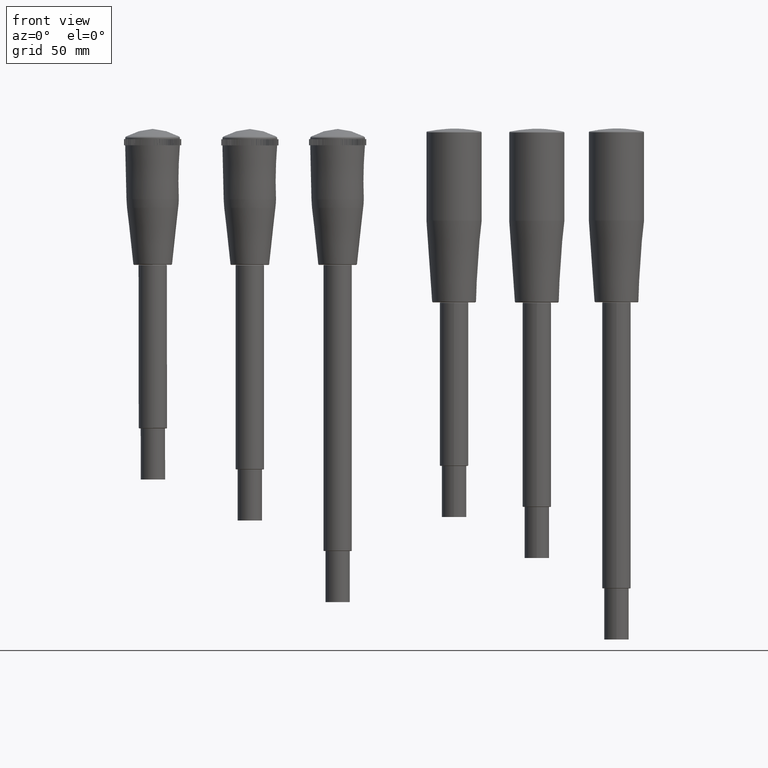
[diagram: clean part render]
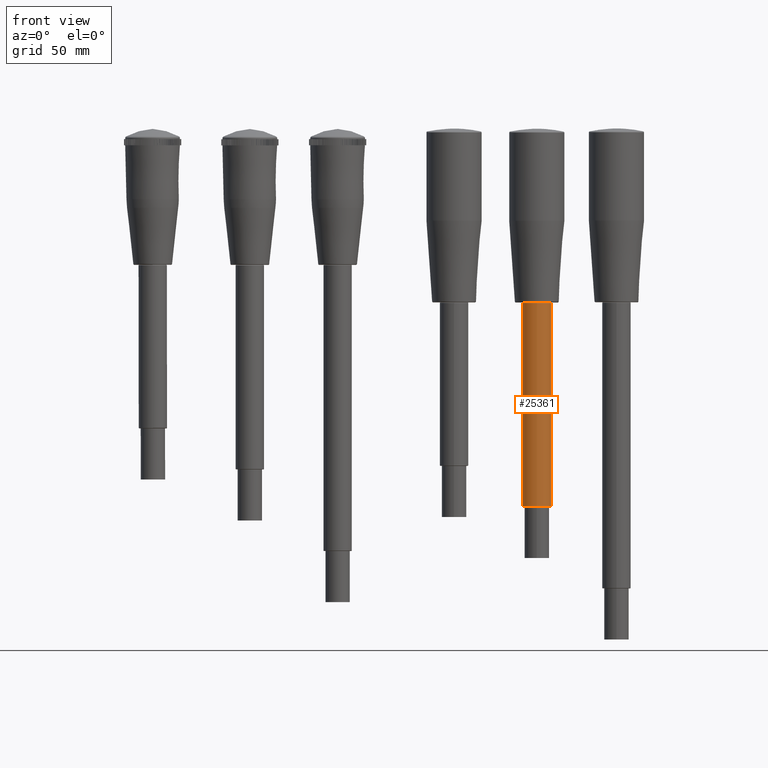
[diagram: same view with one face highlighted and labeled with its STEP entity id]
A machine part, front view. The second image highlights one B-rep face of the part: STEP entity #25361.
In plain terms, the highlighted cylindrical surface (bore or boss wall) has radius 6.97 mm, axis along (-0, 0, 1).
Its self-contained STEP definition (entity closure, byte-faithful):
#276=FACE_BOUND('',#3625,.T.);
#2228=FACE_OUTER_BOUND('',#3624,.T.);
#3624=EDGE_LOOP('',(#23386));
#3625=EDGE_LOOP('',(#23387));
#4952=CIRCLE('',#27992,6.97000000000001);
#4954=CIRCLE('',#27995,6.97000000000001);
#12261=VERTEX_POINT('',#43681);
#12263=VERTEX_POINT('',#43686);
#15977=EDGE_CURVE('',#12261,#12261,#4952,.T.);
#15979=EDGE_CURVE('',#12263,#12263,#4954,.T.);
#23386=ORIENTED_EDGE('',*,*,#15979,.F.);
#23387=ORIENTED_EDGE('',*,*,#15977,.F.);
#24057=CYLINDRICAL_SURFACE('',#27994,6.97000000000001);
#25361=ADVANCED_FACE('',(#2228,#276),#24057,.T.);
#27992=AXIS2_PLACEMENT_3D('',#43682,#35640,#35641);
#27994=AXIS2_PLACEMENT_3D('',#43685,#35644,#35645);
#27995=AXIS2_PLACEMENT_3D('',#43687,#35646,#35647);
#35640=DIRECTION('center_axis',(1.,0.,0.));
#35641=DIRECTION('ref_axis',(0.,-1.,0.));
#35644=DIRECTION('center_axis',(1.,0.,0.));
#35645=DIRECTION('ref_axis',(0.,1.,0.));
#35646=DIRECTION('center_axis',(-1.,0.,0.));
#35647=DIRECTION('ref_axis',(0.,-1.,0.));
#43681=CARTESIAN_POINT('',(124.8,6.97000000000001,8.53578819005706E-16));
#43682=CARTESIAN_POINT('Origin',(124.8,0.,0.));
#43685=CARTESIAN_POINT('Origin',(75.,0.,0.));
#43686=CARTESIAN_POINT('',(25.2,6.97000000000001,-8.53578819005706E-16));
#43687=CARTESIAN_POINT('Origin',(25.2,0.,0.));